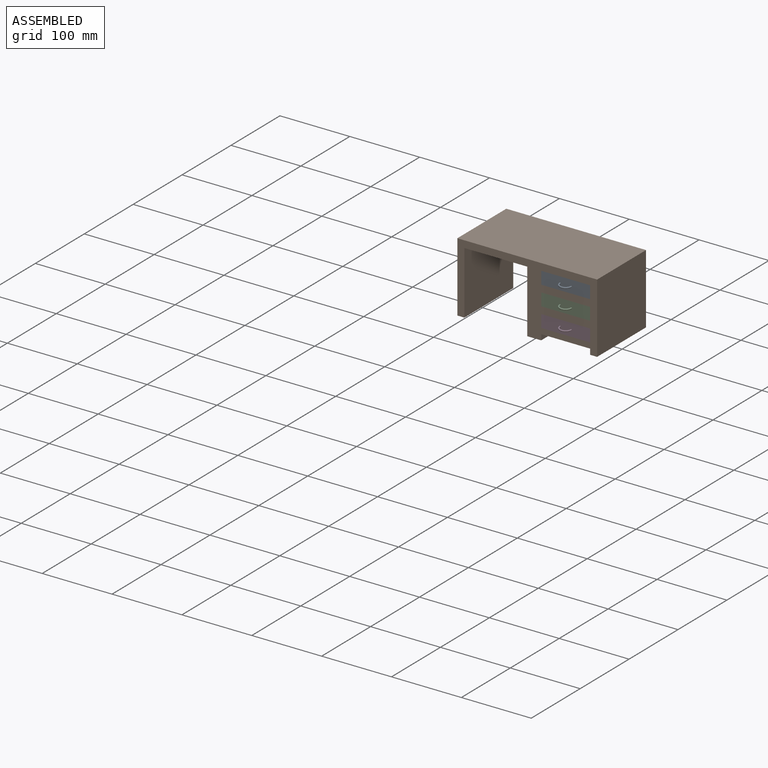
[diagram: assembled view]
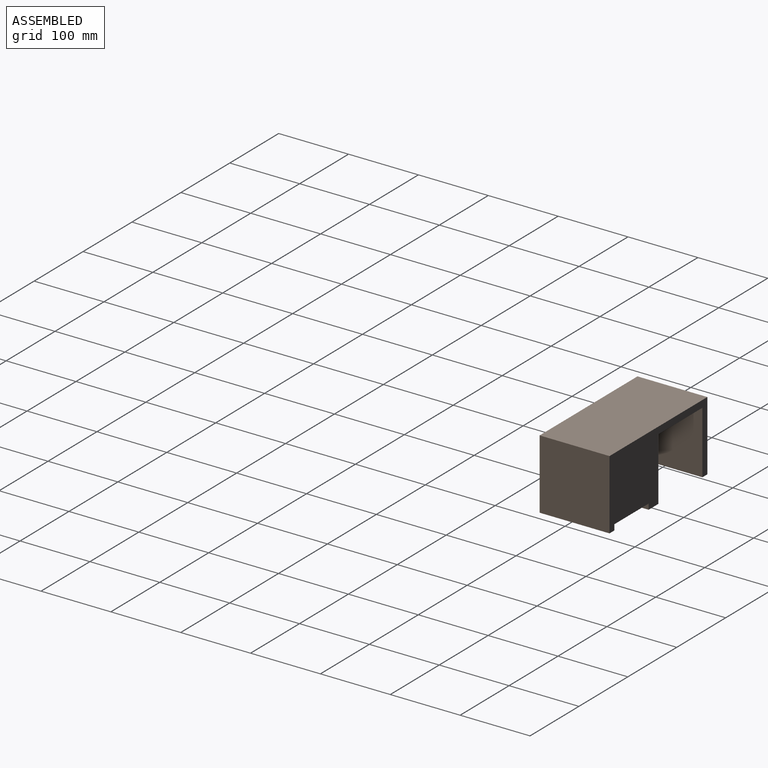
[diagram: assembled view, second angle]
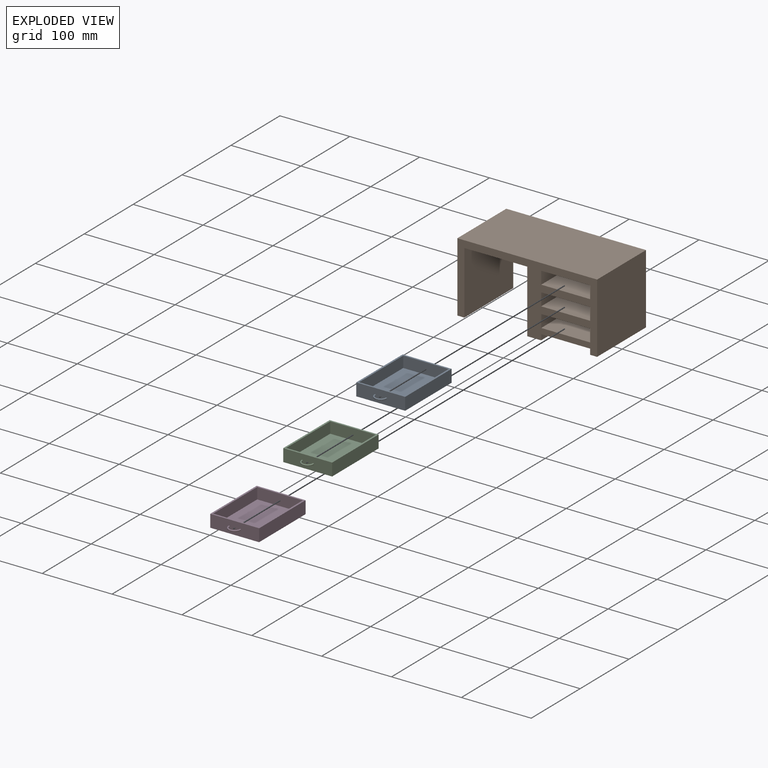
[diagram: exploded view]
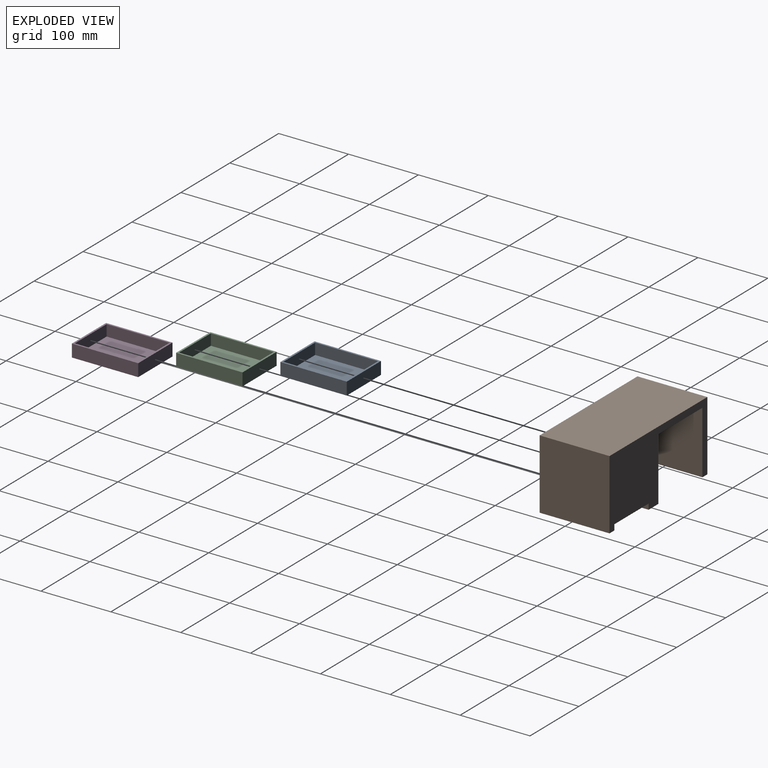
[diagram: exploded view, second angle]
ASSEMBLY  parts=4 mates=3
PART A: 12 faces, bbox 70x104.7x18 mm
  f0: plane 95x70mm, normal (0,0,1), area 800mm2, adj f1,f2,f4,f5,f7,f8,f9,f10
  f1: plane 95x18mm, normal (1,0,0), area 1710mm2, adj f0,f3,f4,f5
  f2: plane 95x18mm, normal (-1,0,0), area 1710mm2, adj f0,f3,f4,f5
  f3: plane 95x70mm, normal (0,0,-1), area 6650mm2, adj f1,f2,f4,f5
  f4: plane 70x18mm, normal (0,-1,0), area 1253.7mm2, adj f0,f1,f2,f3,f6
  f5: plane 70x18mm, normal (0,1,0), area 1260mm2, adj f0,f1,f2,f3
  f6: torus R=8mm, axis (0,0,1), area 157.9mm2, adj f4
  f7: plane 90x16mm, normal (-1,0,0), area 1440mm2, adj f0,f8,f10,f11
  f8: plane 65x16mm, normal (0,-1,0), area 1040mm2, adj f0,f7,f9,f11
  f9: plane 90x16mm, normal (1,0,0), area 1440mm2, adj f0,f8,f10,f11
  f10: plane 65x16mm, normal (0,1,0), area 1040mm2, adj f0,f7,f9,f11
  f11: plane 90x65mm, normal (0,0,1), area 5850mm2, adj f7,f8,f9,f10
PART B: 29 faces, bbox 200x100x100 mm
  f0: plane 200x100mm, normal (0,-1,0), area 7560mm2, adj f1,f3,f4,f5,f6,f7,f8,f9
  f1: plane 100x10mm, normal (0,0,-1), area 1000mm2, adj f0,f2,f4,f11
  f2: plane 200x100mm, normal (0,1,0), area 11340mm2, adj f1,f3,f4,f5,f6,f7,f8,f9
  f3: plane 100x20mm, normal (0,0,-1), area 2000mm2, adj f0,f2,f9,f13
  f4: plane 100x100mm, normal (1,0,0), area 10000mm2, adj f0,f1,f2,f6
  f5: plane 100x100mm, normal (-1,0,0), area 10000mm2, adj f0,f2,f6,f7
  f6: plane 200x100mm, normal (0,0,1), area 20000mm2, adj f0,f2,f4,f5
  f7: plane 100x10mm, normal (0,0,-1), area 1000mm2, adj f0,f2,f5,f8
  f8: plane 100x90mm, normal (1,0,0), area 9000mm2, adj f0,f2,f7,f10
  f9: plane 100x90mm, normal (-1,0,0), area 9000mm2, adj f0,f2,f3,f10
  f10: plane 100x90mm, normal (0,0,-1), area 9000mm2, adj f0,f2,f8,f9
  f11: plane 100x8mm, normal (-1,0,0), area 800mm2, adj f0,f1,f2,f12
  f12: plane 100x70mm, normal (0,0,-1), area 7000mm2, adj f0,f2,f11,f13
  f13: plane 100x8mm, normal (1,0,0), area 800mm2, adj f0,f2,f3,f12
  f14: plane 95x70mm, normal (0,0,-1), area 6650mm2, adj f0,f15,f17,f18
  f15: plane 95x18mm, normal (1,0,0), area 1710mm2, adj f0,f14,f16,f18
  f16: plane 95x70mm, normal (0,0,1), area 6650mm2, adj f0,f15,f17,f18
  f17: plane 95x18mm, normal (-1,0,0), area 1710mm2, adj f0,f14,f16,f18
  f18: plane 70x18mm, normal (0,-1,0), area 1260mm2, adj f14,f15,f16,f17
  f19: plane 95x70mm, normal (0,0,-1), area 6650mm2, adj f0,f20,f22,f23
  f20: plane 95x18mm, normal (1,0,0), area 1710mm2, adj f0,f19,f21,f23
  f21: plane 95x70mm, normal (0,0,1), area 6650mm2, adj f0,f20,f22,f23
  f22: plane 95x18mm, normal (-1,0,0), area 1710mm2, adj f0,f19,f21,f23
  f23: plane 70x18mm, normal (0,-1,0), area 1260mm2, adj f19,f20,f21,f22
  f24: plane 95x70mm, normal (0,0,-1), area 6650mm2, adj f0,f25,f27,f28
  f25: plane 95x18mm, normal (1,0,0), area 1710mm2, adj f0,f24,f26,f28
  f26: plane 95x70mm, normal (0,0,1), area 6650mm2, adj f0,f25,f27,f28
  f27: plane 95x18mm, normal (-1,0,0), area 1710mm2, adj f0,f24,f26,f28
  f28: plane 70x18mm, normal (0,-1,0), area 1260mm2, adj f24,f25,f26,f27
PART C: same geometry as A
PART D: same geometry as A
PLACE A t=(47.96,6.3,73.56)mm
PLACE B t=(-7.04,8.8,-7.44)mm fixed
PLACE C t=(47.96,6.3,45.56)mm
PLACE D t=(47.96,6.3,17.56)mm
MATE slider B.f28 <-> C.f5  axis (0,-1,0) through (47.96,53.8,45.56)mm
MATE slider B.f23 <-> D.f5  axis (0,-1,0) through (47.96,53.8,17.56)mm
MATE slider B.f18 <-> A.f5  axis (0,-1,0) through (47.96,53.8,73.56)mm
